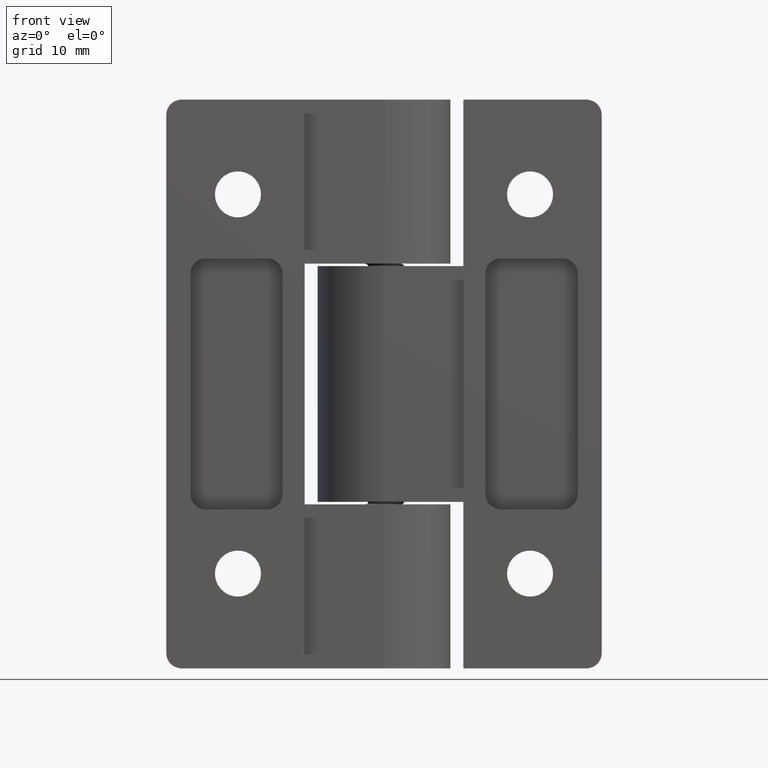
[diagram: clean part render]
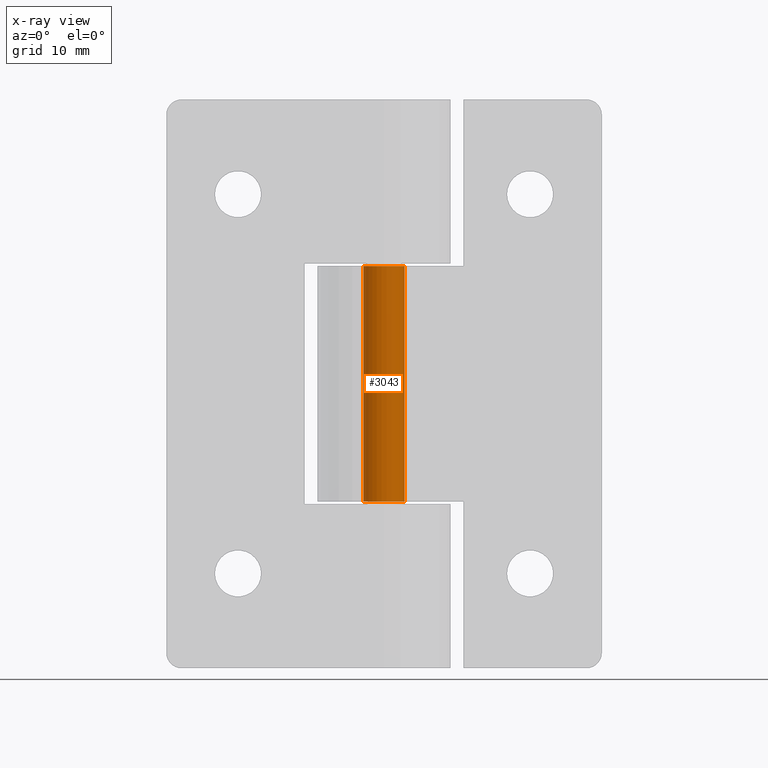
[diagram: x-ray — body ghosted, one internal face saturated and labeled with its STEP entity id]
A machine part, front view, then the same camera in x-ray: the body is ghosted and one INTERNAL B-rep face — a face not visible from any outside direction — is saturated and labeled: STEP entity #3043.
In plain terms, the highlighted cylindrical surface (bore or boss wall) has radius 2 mm, axis along (0, 0, -1).
Its self-contained STEP definition (entity closure, byte-faithful):
#346=FACE_BOUND('',#671,.T.);
#525=FACE_OUTER_BOUND('',#670,.T.);
#670=EDGE_LOOP('',(#2877));
#671=EDGE_LOOP('',(#2878));
#1031=CIRCLE('',#3181,2.);
#1033=CIRCLE('',#3184,2.);
#1417=VERTEX_POINT('',#35933);
#1420=VERTEX_POINT('',#35941);
#1881=EDGE_CURVE('',#1417,#1417,#1031,.T.);
#1885=EDGE_CURVE('',#1420,#1420,#1033,.T.);
#2877=ORIENTED_EDGE('',*,*,#1881,.T.);
#2878=ORIENTED_EDGE('',*,*,#1885,.T.);
#2936=CYLINDRICAL_SURFACE('',#3227,2.);
#3043=ADVANCED_FACE('',(#525,#346),#2936,.F.);
#3181=AXIS2_PLACEMENT_3D('',#35934,#3613,#3614);
#3184=AXIS2_PLACEMENT_3D('',#35942,#3621,#3622);
#3227=AXIS2_PLACEMENT_3D('',#36053,#3739,#3740);
#3613=DIRECTION('center_axis',(3.11641550771973E-16,1.,0.));
#3614=DIRECTION('ref_axis',(1.,-3.11641550771973E-16,0.));
#3621=DIRECTION('center_axis',(0.,-1.,0.));
#3622=DIRECTION('ref_axis',(1.,0.,0.));
#3739=DIRECTION('center_axis',(0.,-1.,0.));
#3740=DIRECTION('ref_axis',(1.,0.,0.));
#35933=CARTESIAN_POINT('',(69.7758813901587,11.5,7.9));
#35934=CARTESIAN_POINT('Origin',(71.7758813901587,11.5,7.9));
#35941=CARTESIAN_POINT('',(69.7758813901587,-11.5,7.9));
#35942=CARTESIAN_POINT('Origin',(71.7758813901587,-11.5,7.9));
#36053=CARTESIAN_POINT('Origin',(71.7758813901587,0.,7.9));